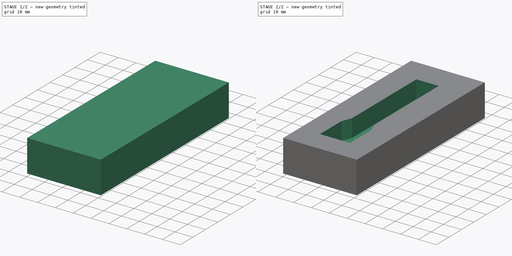
[diagram: build sequence overview — one tinted view per stage of 2, left to right]
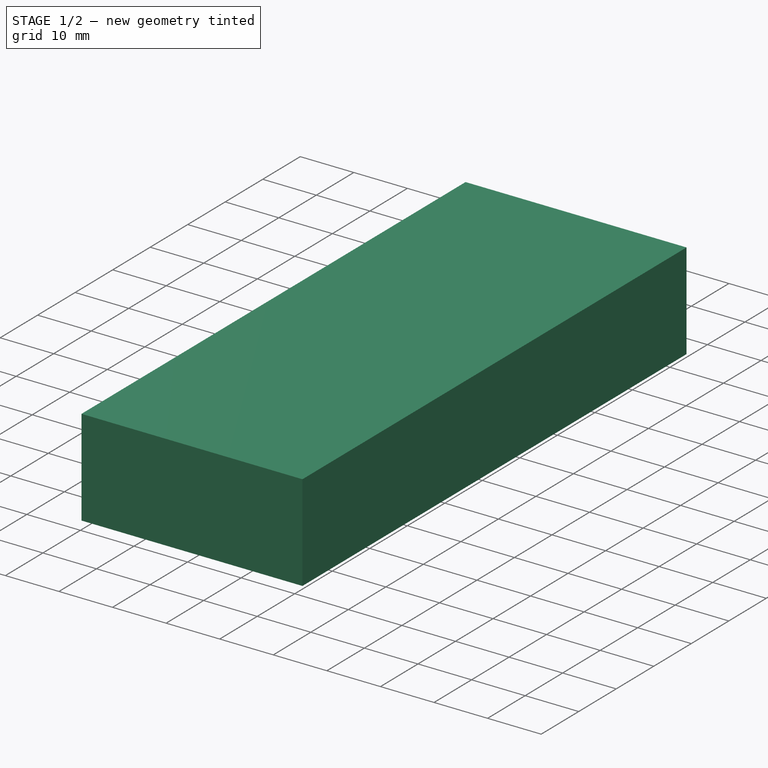
[diagram: stage 1 of 2 — iso view after this stage's code; geometry added in this stage tinted green]
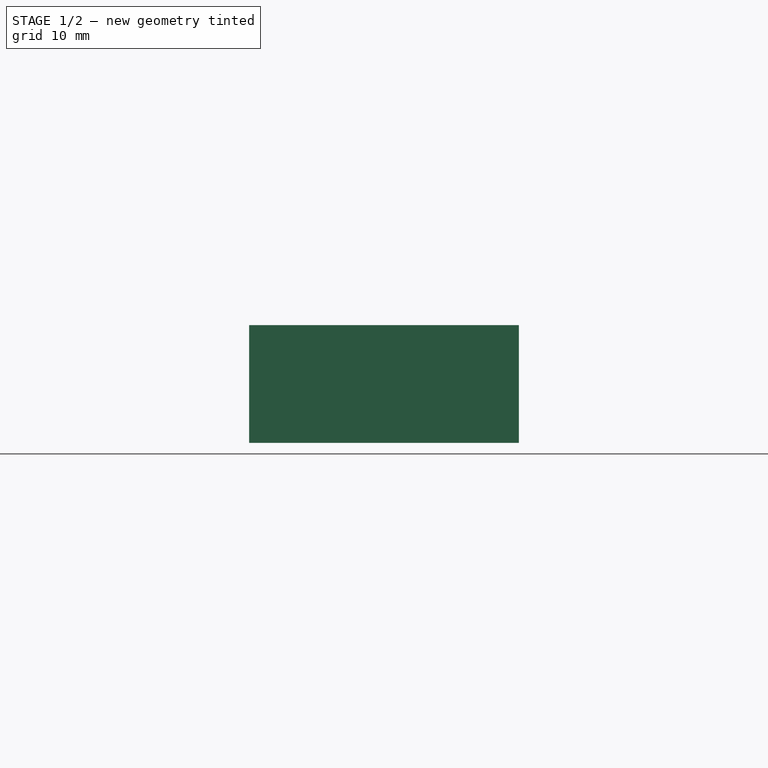
[diagram: stage 1 of 2 — front view after this stage's code; geometry added in this stage tinted green]
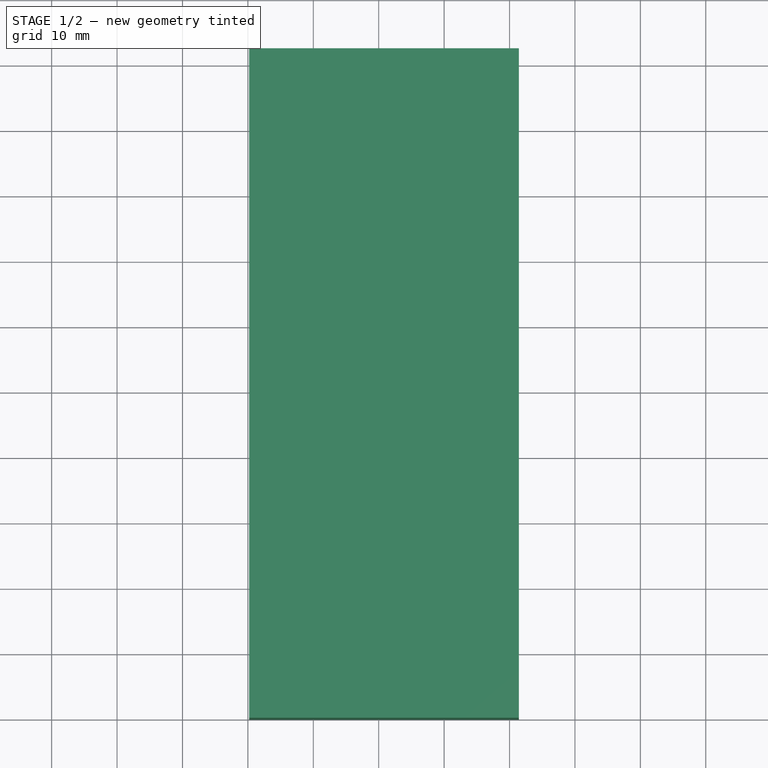
[diagram: stage 1 of 2 — top view after this stage's code; geometry added in this stage tinted green]
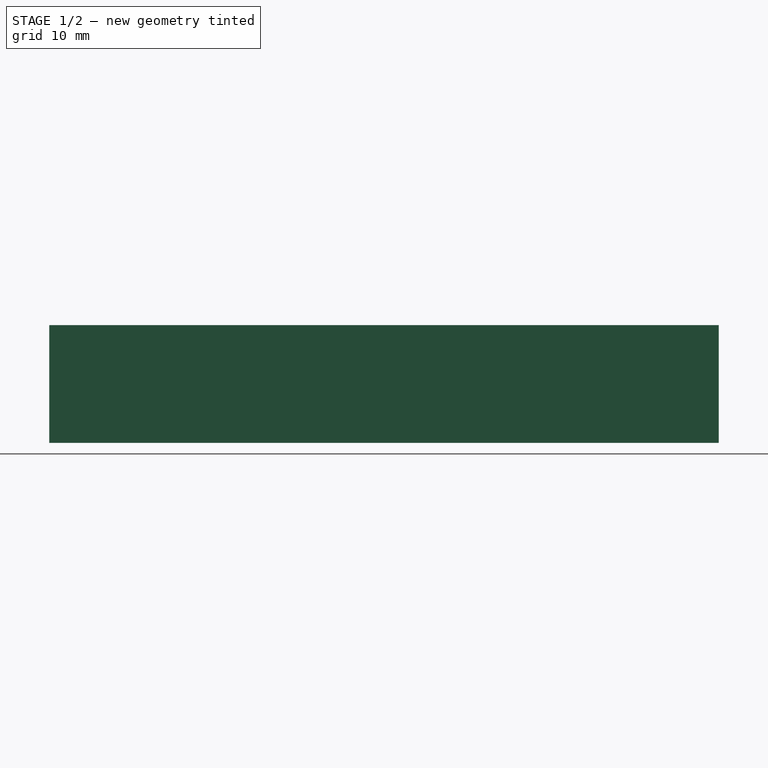
[diagram: stage 1 of 2 — right view after this stage's code; geometry added in this stage tinted green]
FCSTD DOCUMENT  (FreeCAD 0.21R33771 (Git))
Label: random_extensions_gridfinity_test
License: All rights reserved
LicenseURL: http://en.wikipedia.org/wiki/All_rights_reserved
objects: Sketcher::SketchObject×2, PartDesign::Pad×1, PartDesign::Pocket×1, PartDesign::Body×1
note: 7 computed .brp shape members not serialized (recipe doc carries the construction recipe); baked Part::Feature solids carry a one-line shape summary decoded from their .brp

FEATURE [Sketcher::SketchObject] Sketch
  FullyConstrained = false
  MapMode = 5
  Support = -> [XY_Plane]
  sketch-geometry (4):
    g0: LineSegment StartX=-19.8075 StartY=52.3908 StartZ=0 EndX=21.4239 EndY=52.3908 EndZ=0
    g1: LineSegment StartX=21.4239 StartY=52.3908 StartZ=0 EndX=21.4239 EndY=-49.977 EndZ=0
    g2: LineSegment StartX=21.4239 StartY=-49.977 StartZ=0 EndX=-19.8075 EndY=-49.977 EndZ=0
    g3: LineSegment StartX=-19.8075 StartY=-49.977 StartZ=0 EndX=-19.8075 EndY=52.3908 EndZ=0
  constraints (8):
    c: Coincident(g0,g1)
    c: Coincident(g1,g2)
    c: Coincident(g2,g3)
    c: Coincident(g3,g0)
    c: Horizontal(g0)
    c: Horizontal(g2)
    c: Vertical(g1)
    c: Vertical(g3)
FEATURE [PartDesign::Pad] Pad
  Direction = (0,0,1)
  Length = 18
  Length2 = 10
  Profile = -> Sketch
  ReferenceAxis = -> Sketch [N_Axis]
  Type = 0
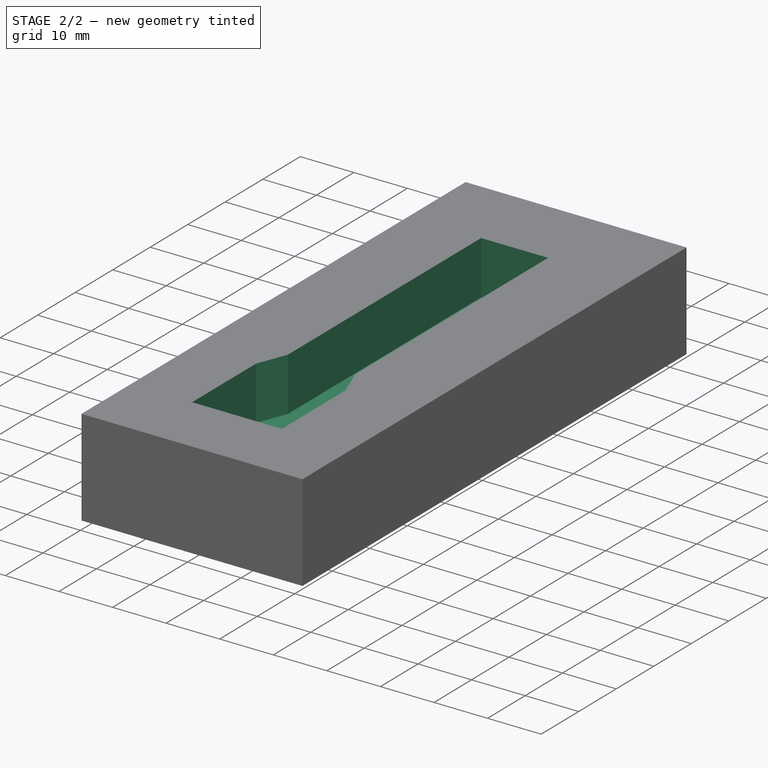
[diagram: stage 2 of 2 — iso view after this stage's code; geometry added in this stage tinted green]
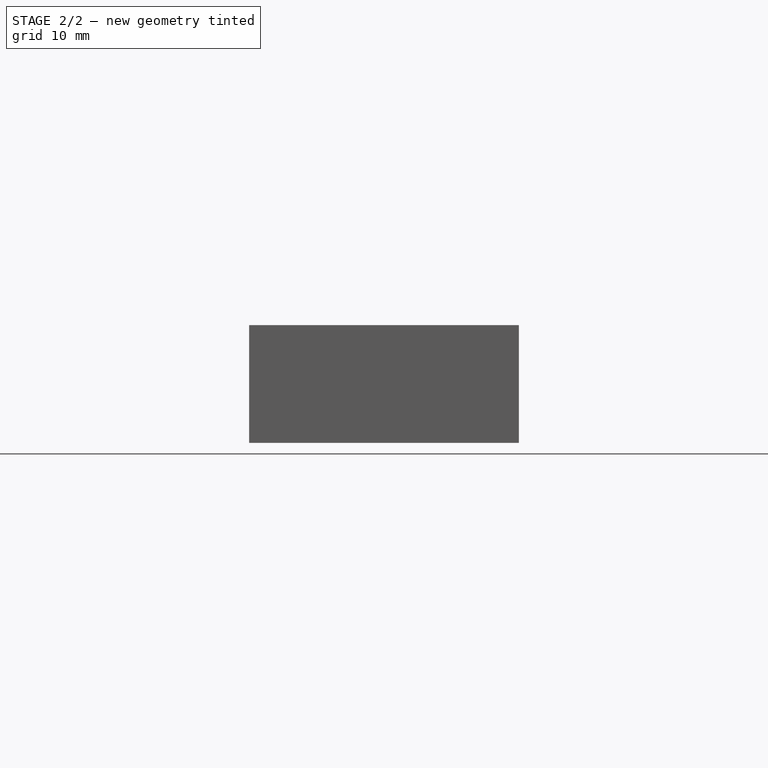
[diagram: stage 2 of 2 — front view after this stage's code; geometry added in this stage tinted green]
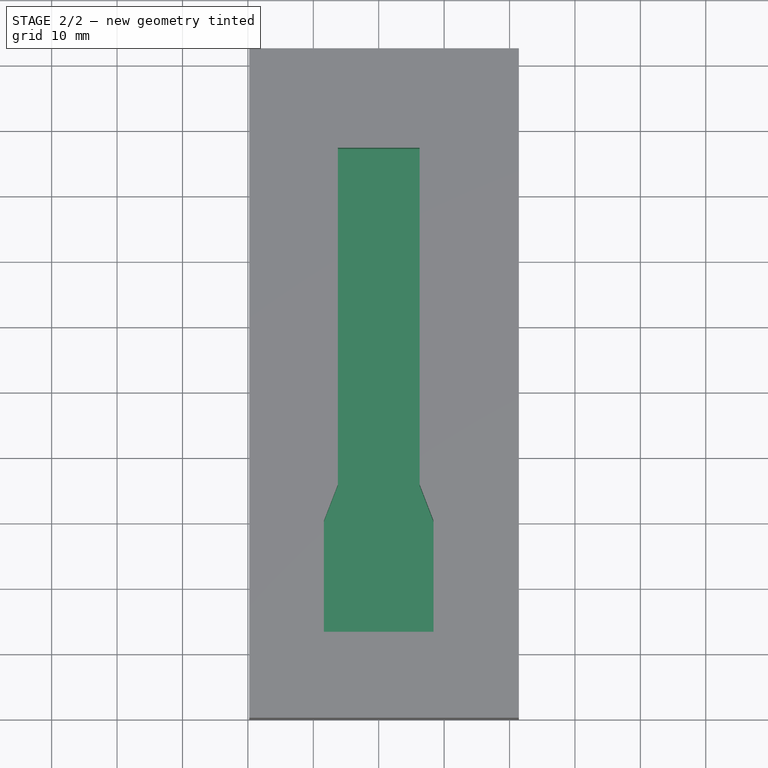
[diagram: stage 2 of 2 — top view after this stage's code; geometry added in this stage tinted green]
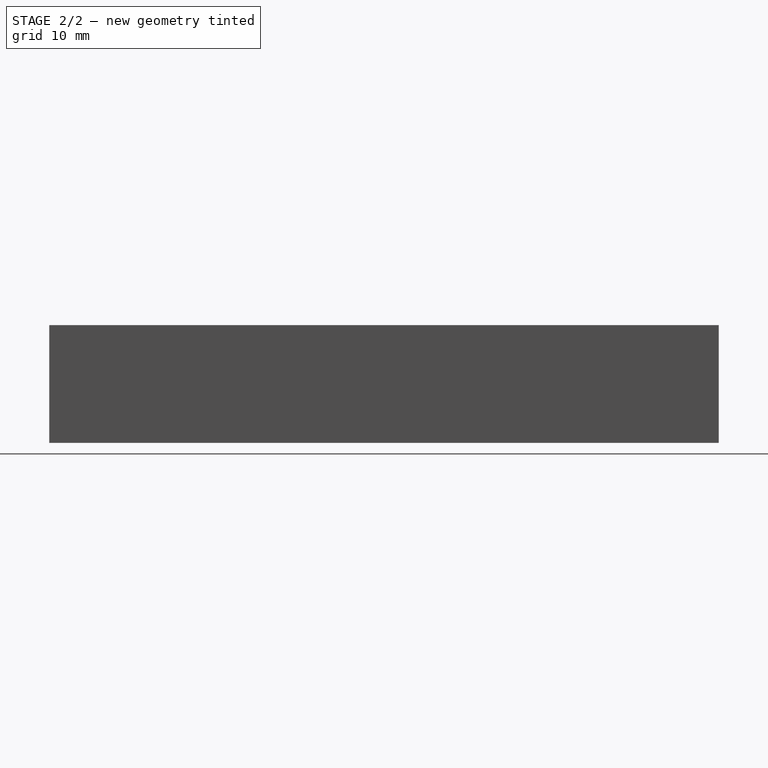
[diagram: stage 2 of 2 — right view after this stage's code; geometry added in this stage tinted green]
FEATURE [Sketcher::SketchObject] Sketch001
  AttachmentOffset = pos=(0,0,18) rot=(0,0,1;0rad)
  FullyConstrained = true
  MapMode = 5
  Placement = pos=(0,0,18) rot=(0,0,1;0rad)
  Support = -> [XY_Plane]
  sketch-geometry (11):
    g0: LineSegment StartX=-6.2428 StartY=37.17 StartZ=0 EndX=-6.2428 EndY=-14.325 EndZ=0
    g1: LineSegment StartX=6.2572 StartY=-14.325 StartZ=0 EndX=6.2572 EndY=37.17 EndZ=0
    g2: LineSegment StartX=6.2572 StartY=37.17 StartZ=0 EndX=-6.2428 EndY=37.17 EndZ=0
    g3: GeomPoint X=0 Y=0 Z=0
    g4: LineSegment StartX=8.375 StartY=-19.83 StartZ=0 EndX=8.375 EndY=-36.83 EndZ=0
    g5: LineSegment StartX=8.375 StartY=-36.83 StartZ=0 EndX=-8.375 EndY=-36.83 EndZ=0
    g6: LineSegment StartX=-8.375 StartY=-36.83 StartZ=0 EndX=-8.375 EndY=-19.83 EndZ=0
    g7: GeomPoint X=-6.2428 Y=-14.325 Z=0
    g8: GeomPoint X=6.2572 Y=-14.325 Z=0
    g9: LineSegment StartX=-8.375 StartY=-19.83 StartZ=0 EndX=-6.2428 EndY=-14.325 EndZ=0
    g10: LineSegment StartX=6.2572 StartY=-14.325 StartZ=0 EndX=8.375 EndY=-19.83 EndZ=0
  constraints (27):
    c: Coincident(g1,g2)
    c: Coincident(g2,g0)
    c: Horizontal(g2)
    c: Vertical(g0)
    c: Vertical(g1)
    c: Coincident(g3,g-1)
    c: DistanceX(g2,g2) = 12.5
    c: Coincident(g4,g5)
    c: Coincident(g5,g6)
    c: Horizontal(g5)
    c: Vertical(g4)
    c: Vertical(g6)
    c: DistanceX(g6,g4) = 16.75
    c: DistanceY(g4,g4) = 17
    c: DistanceX(g6,g-1) = 8.375
    c: DistanceY(g4,g1) = 74
    c: Coincident(g9,g7)
    c: Coincident(g10,g8)
    c: Coincident(g10,g4)
    c: Coincident(g1,g10)
    c: Coincident(g0,g9)
    c: Horizontal(g0,g1)
    c: Horizontal(g6,g4)
    c: DistanceY(g4,g1) = 5.505
    c: DistanceY(g4,g3) = 36.83
    c: Coincident(g6,g9)
    c: DistanceX(g0,g-1) = 6.2428
FEATURE [PartDesign::Pocket] Pocket
  BaseFeature = -> Pad
  Direction = (0,0,-1)
  Length = 10
  Length2 = 5
  Profile = -> Sketch001
  ReferenceAxis = -> Sketch001 [N_Axis]
  Type = 0
FEATURE [PartDesign::Body] Body
  Group = -> [Sketch,Pad,Sketch001,Pocket]
  Origin = -> Origin
  Tip = -> Pocket
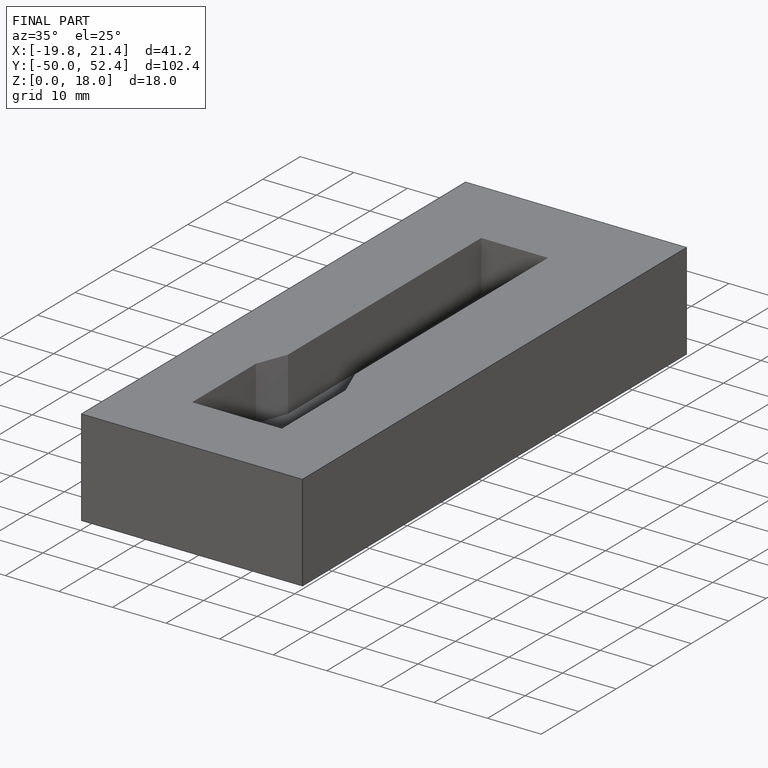
[diagram: finished part — iso view with bounding-box wireframe]
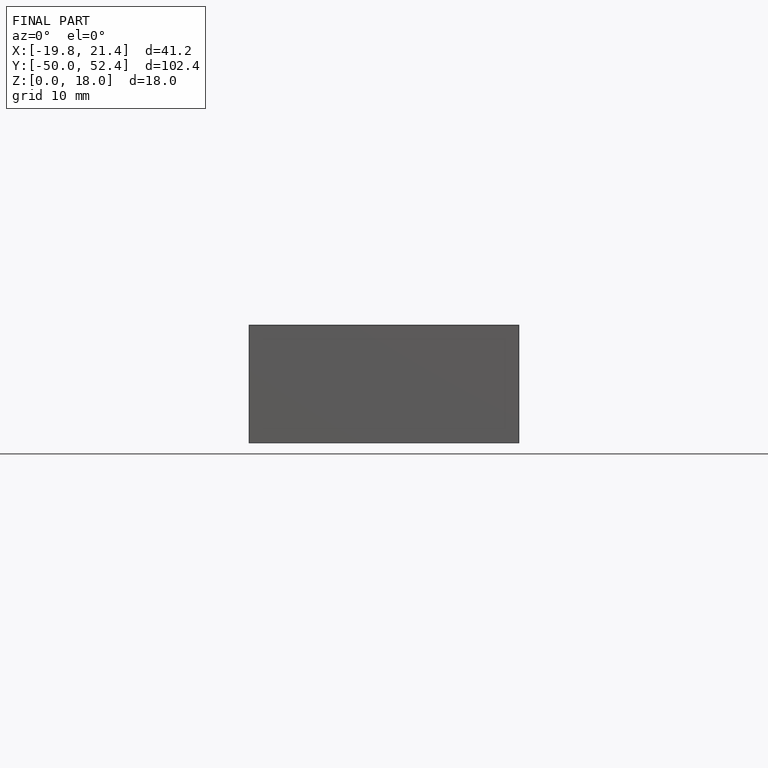
[diagram: finished part — front view with bounding-box wireframe]
